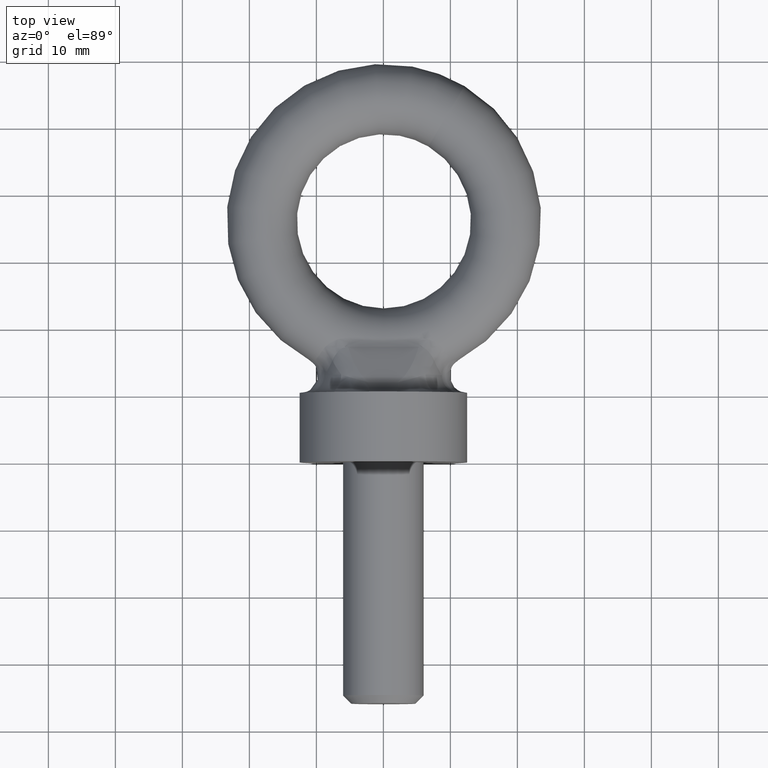
[diagram: clean part render]
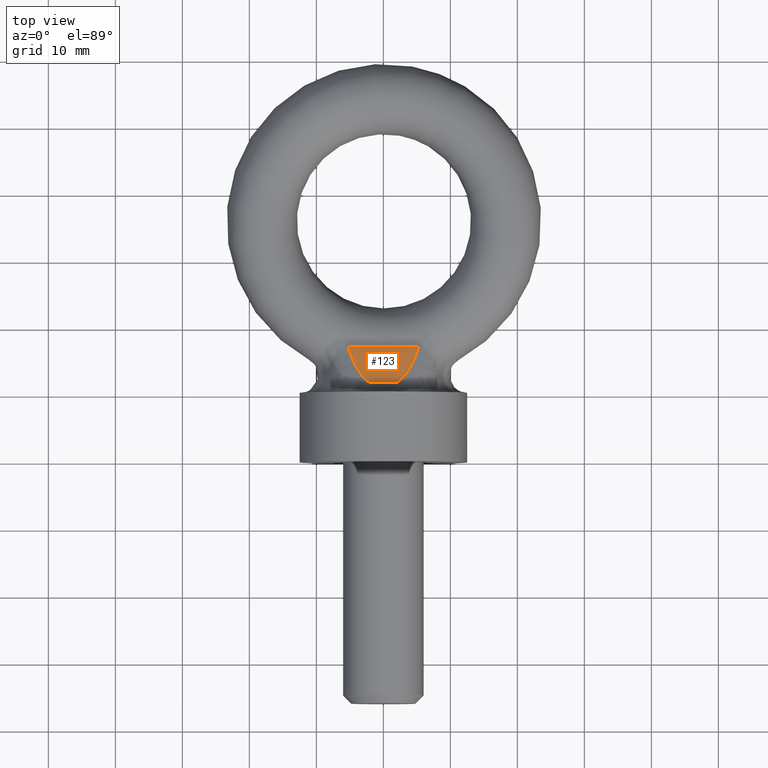
[diagram: same view with one face highlighted and labeled with its STEP entity id]
A machine part, top view. The second image highlights one B-rep face of the part: STEP entity #123.
In plain terms, the highlighted planar face has unit normal (0, 0.4545, 0.8908).
Its self-contained STEP definition (entity closure, byte-faithful):
#88=PLANE('',#671);
#93=LINE('',#959,#97);
#97=VECTOR('',#761,1.);
#113=ELLIPSE('',#669,13.2021816378961,6.);
#114=ELLIPSE('',#670,13.2021816378961,6.);
#123=ADVANCED_FACE('',(#186),#88,.T.);
#186=FACE_OUTER_BOUND('',#225,.T.);
#225=EDGE_LOOP('',(#327,#328,#329,#330));
#327=ORIENTED_EDGE('',*,*,#549,.T.);
#328=ORIENTED_EDGE('',*,*,#550,.T.);
#329=ORIENTED_EDGE('',*,*,#551,.T.);
#330=ORIENTED_EDGE('',*,*,#552,.T.);
#497=VERTEX_POINT('',#957);
#498=VERTEX_POINT('',#958);
#499=VERTEX_POINT('',#960);
#500=VERTEX_POINT('',#962);
#549=EDGE_CURVE('',#497,#498,#113,.T.);
#550=EDGE_CURVE('',#498,#499,#93,.T.);
#551=EDGE_CURVE('',#499,#500,#114,.T.);
#552=EDGE_CURVE('',#500,#497,#624,.T.);
#624=B_SPLINE_CURVE_WITH_KNOTS('',3,(#963,#964,#965,#966,#967,#968,#969),
 .UNSPECIFIED.,.F.,.F.,(4,3,4),(0.,0.499931866309019,1.),.UNSPECIFIED.);
#669=AXIS2_PLACEMENT_3D('',#956,#759,#760);
#670=AXIS2_PLACEMENT_3D('',#961,#762,#763);
#671=AXIS2_PLACEMENT_3D('',#970,#764,#765);
#759=DIRECTION('',(0.,0.454470341687874,0.890761869708233));
#760=DIRECTION('',(-1.09804000302255E-18,0.890761869708233,-0.454470341687874));
#761=DIRECTION('',(1.,9.780921661068E-19,-4.99026615360612E-19));
#762=DIRECTION('',(0.,0.454470341687874,0.890761869708233));
#763=DIRECTION('',(-1.09804000302255E-18,0.890761869708233,-0.454470341687874));
#764=DIRECTION('',(0.,0.454470341687874,0.890761869708233));
#765=DIRECTION('',(0.,-0.890761869708233,0.454470341687874));
#956=CARTESIAN_POINT('',(-3.60809317146639E-18,22.8023202061156,2.6722856091247));
#957=CARTESIAN_POINT('',(-5.27298902615248,17.191244909681,5.53507912771376));
#958=CARTESIAN_POINT('',(-2.16160478669441,11.8320153530693,8.26937992190341));
#959=CARTESIAN_POINT('',(25.,11.8320153530693,8.26937992190341));
#960=CARTESIAN_POINT('',(2.16160478669442,11.8320153530693,8.26937992190341));
#961=CARTESIAN_POINT('',(-3.60809317146639E-18,22.8023202061156,2.6722856091247));
#962=CARTESIAN_POINT('',(5.27254256580204,17.1896334291468,5.53590131165981));
#963=CARTESIAN_POINT('',(5.27254256580204,17.1896334291468,5.53590131165981));
#964=CARTESIAN_POINT('',(3.51516102385949,17.1757281340656,5.54299584996653));
#965=CARTESIAN_POINT('',(1.75803799802504,17.2490906995786,5.50556596960274));
#966=CARTESIAN_POINT('',(0.000588202091483873,17.2473569285481,5.50645054665913));
#967=CARTESIAN_POINT('',(-1.75739520131623,17.2456226310996,5.50733539229613));
#968=CARTESIAN_POINT('',(-3.51514627555073,17.1713607272656,5.54522411874202));
#969=CARTESIAN_POINT('',(-5.27298902615248,17.191244909681,5.53507912771376));
#970=CARTESIAN_POINT('',(25.,10.4,9.));